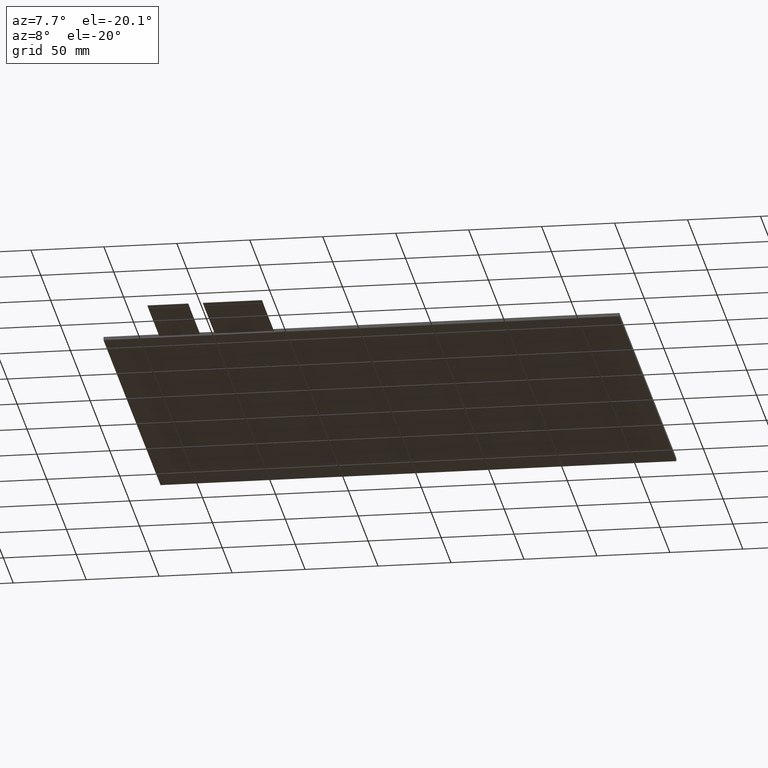
[diagram: clean part render]
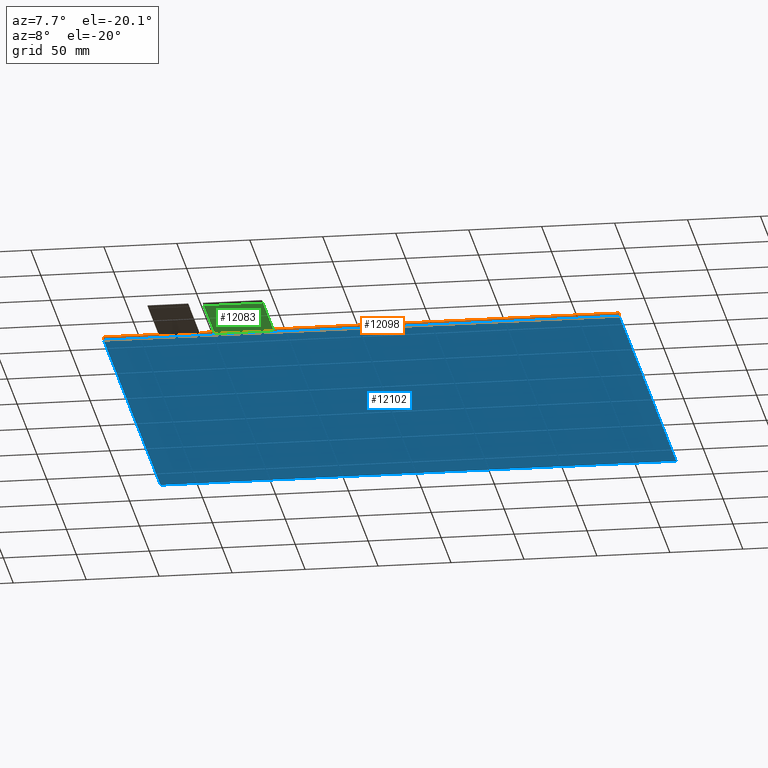
[diagram: same view with three faces highlighted in distinct colors, each labeled with its STEP entity id]
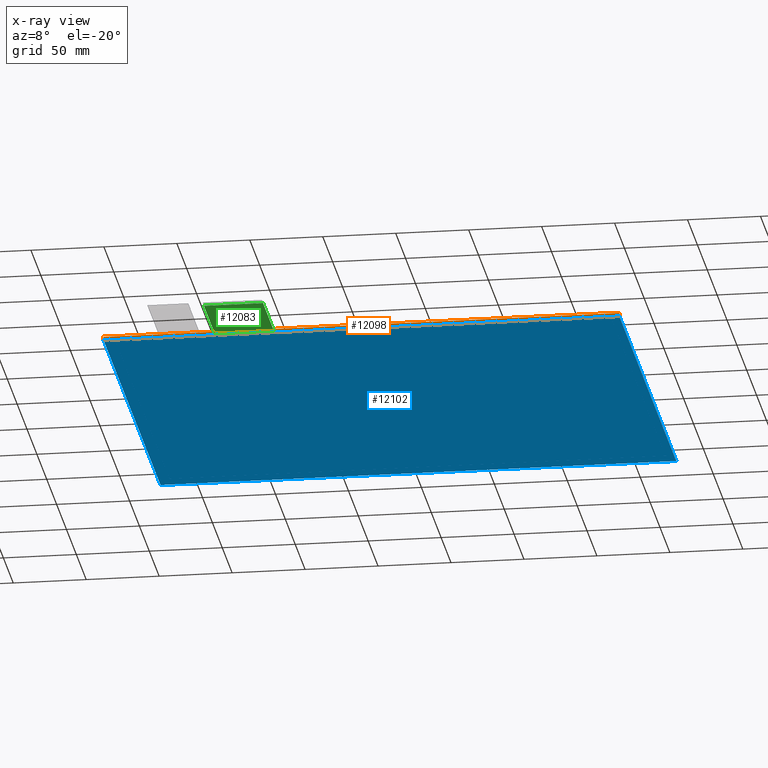
[diagram: x-ray of the same camera — body ghosted, the three highlighted faces saturated]
A machine part, auxiliary view with three faces highlighted in distinct colors.
The next image is the same camera in x-ray (body ghosted, the three faces saturated) — at least one of them is partly hidden behind the body in this view.
Their STEP definitions:

[orange] entity #12098 — the highlighted planar face has unit normal (0, -1, 0).
#69=FACE_BOUND('',#1799,.T.);
#70=FACE_BOUND('',#1800,.T.);
#640=PLANE('',#12704);
#1218=FACE_OUTER_BOUND('',#1798,.T.);
#1798=EDGE_LOOP('',(#11493,#11494,#11495,#11496));
#1799=EDGE_LOOP('',(#11497,#11498,#11499,#11500));
#1800=EDGE_LOOP('',(#11501,#11502,#11503,#11504));
#3449=LINE('',#18900,#5157);
#3457=LINE('',#18916,#5165);
#3468=LINE('',#18938,#5176);
#3470=LINE('',#18941,#5178);
#3471=LINE('',#18943,#5179);
#3473=LINE('',#18948,#5181);
#3475=LINE('',#18951,#5183);
#3476=LINE('',#18953,#5184);
#3503=LINE('',#19010,#5211);
#3507=LINE('',#19017,#5215);
#3508=LINE('',#19020,#5216);
#3509=LINE('',#19021,#5217);
#5157=VECTOR('',#15471,10.);
#5165=VECTOR('',#15483,10.);
#5176=VECTOR('',#15504,10.);
#5178=VECTOR('',#15508,10.);
#5179=VECTOR('',#15511,10.);
#5181=VECTOR('',#15515,10.);
#5183=VECTOR('',#15519,10.);
#5184=VECTOR('',#15522,10.);
#5211=VECTOR('',#15569,10.);
#5215=VECTOR('',#15575,10.);
#5216=VECTOR('',#15578,10.);
#5217=VECTOR('',#15579,10.);
#6333=VERTEX_POINT('',#18897);
#6334=VERTEX_POINT('',#18899);
#6339=VERTEX_POINT('',#18913);
#6340=VERTEX_POINT('',#18915);
#6345=VERTEX_POINT('',#18935);
#6346=VERTEX_POINT('',#18937);
#6347=VERTEX_POINT('',#18945);
#6348=VERTEX_POINT('',#18947);
#6367=VERTEX_POINT('',#19007);
#6368=VERTEX_POINT('',#19009);
#6370=VERTEX_POINT('',#19015);
#6371=VERTEX_POINT('',#19019);
#8025=EDGE_CURVE('',#6334,#6333,#3449,.T.);
#8033=EDGE_CURVE('',#6340,#6339,#3457,.T.);
#8044=EDGE_CURVE('',#6346,#6345,#3468,.T.);
#8046=EDGE_CURVE('',#6339,#6346,#3470,.T.);
#8047=EDGE_CURVE('',#6345,#6340,#3471,.T.);
#8049=EDGE_CURVE('',#6348,#6347,#3473,.T.);
#8051=EDGE_CURVE('',#6333,#6348,#3475,.T.);
#8052=EDGE_CURVE('',#6347,#6334,#3476,.T.);
#8079=EDGE_CURVE('',#6367,#6368,#3503,.T.);
#8083=EDGE_CURVE('',#6367,#6370,#3507,.T.);
#8084=EDGE_CURVE('',#6371,#6370,#3508,.T.);
#8085=EDGE_CURVE('',#6368,#6371,#3509,.T.);
#11493=ORIENTED_EDGE('',*,*,#8079,.F.);
#11494=ORIENTED_EDGE('',*,*,#8083,.T.);
#11495=ORIENTED_EDGE('',*,*,#8084,.F.);
#11496=ORIENTED_EDGE('',*,*,#8085,.F.);
#11497=ORIENTED_EDGE('',*,*,#8044,.T.);
#11498=ORIENTED_EDGE('',*,*,#8047,.T.);
#11499=ORIENTED_EDGE('',*,*,#8033,.T.);
#11500=ORIENTED_EDGE('',*,*,#8046,.T.);
#11501=ORIENTED_EDGE('',*,*,#8049,.T.);
#11502=ORIENTED_EDGE('',*,*,#8052,.T.);
#11503=ORIENTED_EDGE('',*,*,#8025,.T.);
#11504=ORIENTED_EDGE('',*,*,#8051,.T.);
#12098=ADVANCED_FACE('',(#1218,#69,#70),#640,.T.);
#12704=AXIS2_PLACEMENT_3D('',#19018,#15576,#15577);
#15471=DIRECTION('',(0.,0.,1.));
#15483=DIRECTION('',(0.,0.,1.));
#15504=DIRECTION('',(0.,0.,-1.));
#15508=DIRECTION('',(1.,5.02505470834583E-17,0.));
#15511=DIRECTION('',(-1.,-5.02505470834583E-17,0.));
#15515=DIRECTION('',(0.,0.,-1.));
#15519=DIRECTION('',(1.,5.02505470834583E-17,0.));
#15522=DIRECTION('',(-1.,-5.02505470834583E-17,0.));
#15569=DIRECTION('',(1.,5.02505470834583E-17,0.));
#15575=DIRECTION('',(0.,0.,-1.));
#15576=DIRECTION('center_axis',(5.02505470834583E-17,-1.,0.));
#15577=DIRECTION('ref_axis',(-1.,-5.02505470834583E-17,0.));
#15578=DIRECTION('',(-1.,-5.02505470834583E-17,0.));
#15579=DIRECTION('',(0.,0.,-1.));
#18897=CARTESIAN_POINT('',(-139.49,-146.99,-1.1));
#18899=CARTESIAN_POINT('',(-139.49,-146.99,-1.2));
#18900=CARTESIAN_POINT('',(-139.49,-146.99,-0.55));
#18913=CARTESIAN_POINT('',(-101.49,-146.99,-1.1));
#18915=CARTESIAN_POINT('',(-101.49,-146.99,-1.2));
#18916=CARTESIAN_POINT('',(-101.49,-146.99,-0.55));
#18935=CARTESIAN_POINT('',(-60.9899999999999,-146.99,-1.2));
#18937=CARTESIAN_POINT('',(-60.9899999999999,-146.99,-1.1));
#18938=CARTESIAN_POINT('',(-60.9899999999999,-146.99,-0.55));
#18941=CARTESIAN_POINT('',(47.285,-146.99,-1.1));
#18943=CARTESIAN_POINT('',(47.285,-146.99,-1.2));
#18945=CARTESIAN_POINT('',(-111.49,-146.99,-1.2));
#18947=CARTESIAN_POINT('',(-111.49,-146.99,-1.1));
#18948=CARTESIAN_POINT('',(-111.49,-146.99,-0.55));
#18951=CARTESIAN_POINT('',(25.16,-146.99,-1.1));
#18953=CARTESIAN_POINT('',(25.16,-146.99,-1.2));
#19007=CARTESIAN_POINT('',(-177.69,-146.99,0.));
#19009=CARTESIAN_POINT('',(175.81,-146.99,0.));
#19010=CARTESIAN_POINT('',(-177.69,-146.99,0.));
#19015=CARTESIAN_POINT('',(-177.69,-146.99,-2.35));
#19017=CARTESIAN_POINT('',(-177.69,-146.99,0.));
#19018=CARTESIAN_POINT('Origin',(175.81,-146.99,0.));
#19019=CARTESIAN_POINT('',(175.81,-146.99,-2.35));
#19020=CARTESIAN_POINT('',(-177.69,-146.99,-2.35));
#19021=CARTESIAN_POINT('',(175.81,-146.99,0.));

[blue] entity #12102 — the highlighted planar face has unit normal (0, 0, -1).
#644=PLANE('',#12708);
#1222=FACE_OUTER_BOUND('',#1804,.T.);
#1804=EDGE_LOOP('',(#11517,#11518,#11519,#11520));
#3506=LINE('',#19016,#5214);
#3508=LINE('',#19020,#5216);
#3510=LINE('',#19024,#5218);
#3512=LINE('',#19027,#5220);
#5214=VECTOR('',#15574,10.);
#5216=VECTOR('',#15578,10.);
#5218=VECTOR('',#15582,10.);
#5220=VECTOR('',#15586,10.);
#6369=VERTEX_POINT('',#19013);
#6370=VERTEX_POINT('',#19015);
#6371=VERTEX_POINT('',#19019);
#6372=VERTEX_POINT('',#19023);
#8082=EDGE_CURVE('',#6370,#6369,#3506,.T.);
#8084=EDGE_CURVE('',#6371,#6370,#3508,.T.);
#8086=EDGE_CURVE('',#6372,#6371,#3510,.T.);
#8088=EDGE_CURVE('',#6369,#6372,#3512,.T.);
#11517=ORIENTED_EDGE('',*,*,#8088,.T.);
#11518=ORIENTED_EDGE('',*,*,#8086,.T.);
#11519=ORIENTED_EDGE('',*,*,#8084,.T.);
#11520=ORIENTED_EDGE('',*,*,#8082,.T.);
#12102=ADVANCED_FACE('',(#1222),#644,.T.);
#12708=AXIS2_PLACEMENT_3D('',#19029,#15589,#15590);
#15574=DIRECTION('',(-2.45862538325294E-16,1.,0.));
#15578=DIRECTION('',(-1.,-5.02505470834583E-17,0.));
#15582=DIRECTION('',(-1.22931269162647E-16,-1.,0.));
#15586=DIRECTION('',(1.,0.,0.));
#15589=DIRECTION('center_axis',(0.,0.,-1.));
#15590=DIRECTION('ref_axis',(-1.,0.,0.));
#19013=CARTESIAN_POINT('',(-177.69,142.01,-2.35));
#19015=CARTESIAN_POINT('',(-177.69,-146.99,-2.35));
#19016=CARTESIAN_POINT('',(-177.69,142.01,-2.35));
#19019=CARTESIAN_POINT('',(175.81,-146.99,-2.35));
#19020=CARTESIAN_POINT('',(-177.69,-146.99,-2.35));
#19023=CARTESIAN_POINT('',(175.81,142.01,-2.35));
#19024=CARTESIAN_POINT('',(175.81,-146.99,-2.35));
#19027=CARTESIAN_POINT('',(175.81,142.01,-2.35));
#19029=CARTESIAN_POINT('Origin',(-0.940000000000012,-2.48999999999999,-2.35));

[green] entity #12083 — the highlighted planar face has unit normal (0, 0, -1).
#625=PLANE('',#12689);
#1203=FACE_OUTER_BOUND('',#1781,.T.);
#1781=EDGE_LOOP('',(#11421,#11422,#11423,#11424));
#3452=LINE('',#18906,#5160);
#3458=LINE('',#18917,#5166);
#3467=LINE('',#18936,#5175);
#3471=LINE('',#18943,#5179);
#5160=VECTOR('',#15476,10.);
#5166=VECTOR('',#15484,10.);
#5175=VECTOR('',#15503,10.);
#5179=VECTOR('',#15511,10.);
#6335=VERTEX_POINT('',#18903);
#6336=VERTEX_POINT('',#18905);
#6340=VERTEX_POINT('',#18915);
#6345=VERTEX_POINT('',#18935);
#8028=EDGE_CURVE('',#6336,#6335,#3452,.T.);
#8034=EDGE_CURVE('',#6335,#6340,#3458,.T.);
#8043=EDGE_CURVE('',#6345,#6336,#3467,.T.);
#8047=EDGE_CURVE('',#6345,#6340,#3471,.T.);
#11421=ORIENTED_EDGE('',*,*,#8028,.T.);
#11422=ORIENTED_EDGE('',*,*,#8034,.T.);
#11423=ORIENTED_EDGE('',*,*,#8047,.F.);
#11424=ORIENTED_EDGE('',*,*,#8043,.T.);
#12083=ADVANCED_FACE('',(#1203),#625,.T.);
#12689=AXIS2_PLACEMENT_3D('',#18942,#15509,#15510);
#15476=DIRECTION('',(-1.,0.,0.));
#15484=DIRECTION('',(-2.96059473233375E-16,1.,0.));
#15503=DIRECTION('',(1.48029736616688E-16,-1.,0.));
#15509=DIRECTION('center_axis',(0.,0.,-1.));
#15510=DIRECTION('ref_axis',(-1.,0.,0.));
#15511=DIRECTION('',(-1.,-5.02505470834583E-17,0.));
#18903=CARTESIAN_POINT('',(-101.49,-201.99,-1.2));
#18905=CARTESIAN_POINT('',(-60.9899999999999,-201.99,-1.2));
#18906=CARTESIAN_POINT('',(-71.1149999999999,-201.99,-1.2));
#18915=CARTESIAN_POINT('',(-101.49,-146.99,-1.2));
#18917=CARTESIAN_POINT('',(-101.49,-146.99,-1.2));
#18935=CARTESIAN_POINT('',(-60.9899999999999,-146.99,-1.2));
#18936=CARTESIAN_POINT('',(-60.9899999999999,-206.99,-1.2));
#18942=CARTESIAN_POINT('Origin',(-81.24,-176.99,-1.2));
#18943=CARTESIAN_POINT('',(47.285,-146.99,-1.2));